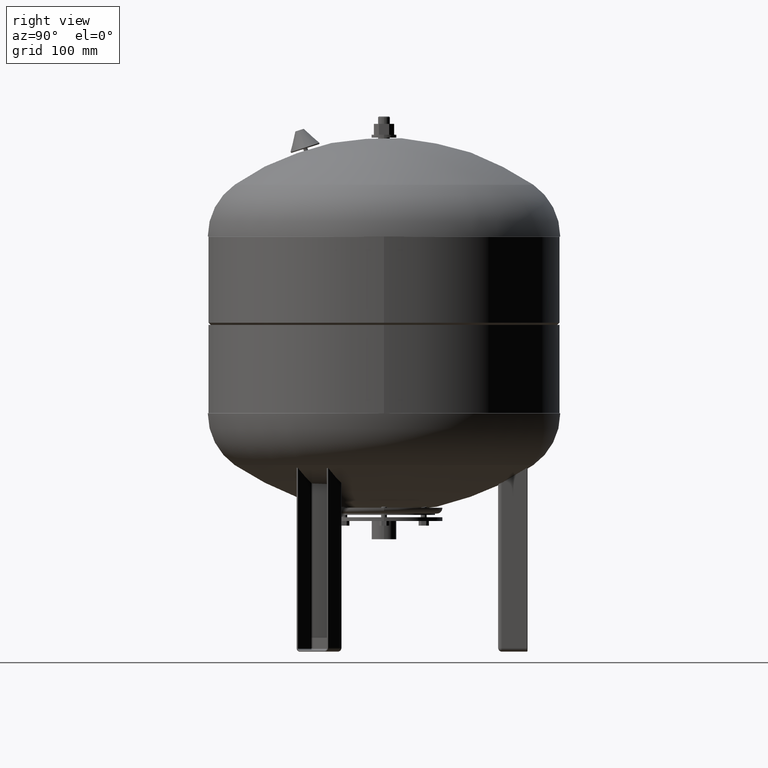
[diagram: clean part render]
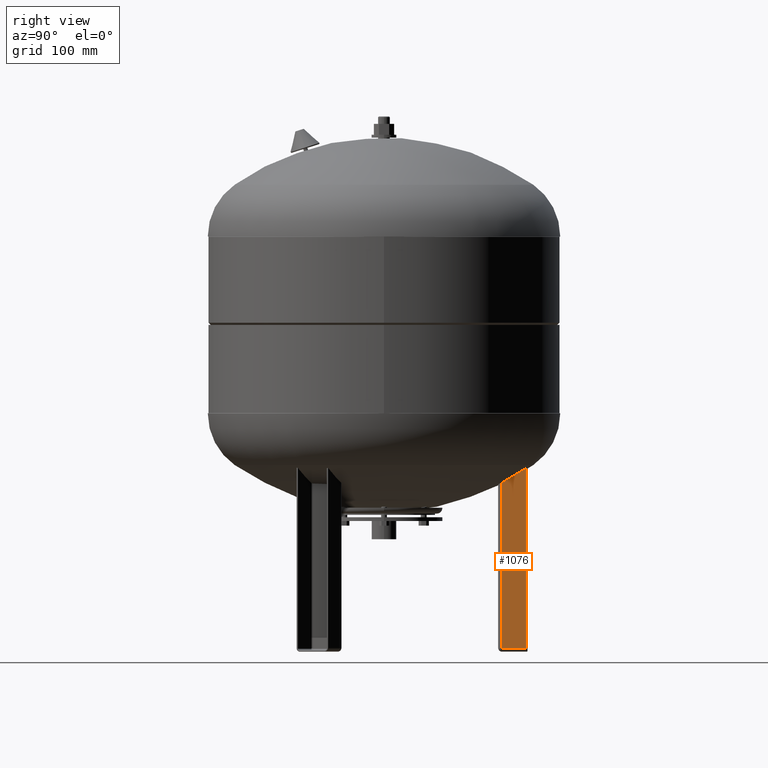
[diagram: same view with one face highlighted and labeled with its STEP entity id]
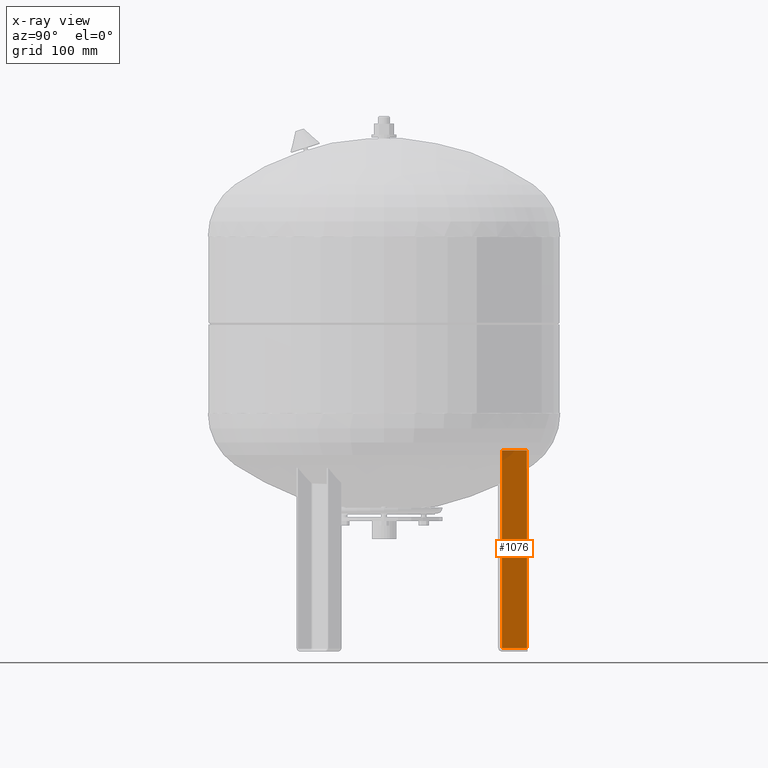
[diagram: x-ray of the same camera — body ghosted, the highlighted face saturated]
A machine part, right view. The second image highlights one B-rep face of the part: STEP entity #1076.
The next image is the same camera in x-ray: the body ghosted, the highlighted face saturated — about 2% of this face is hidden behind the body in this view.
In plain terms, the highlighted planar face has unit normal (1, 0, 0).
Its self-contained STEP definition (entity closure, byte-faithful):
#284=CARTESIAN_POINT('',(25.000000000000007,160.500000000000000,274.0));
#285=VERTEX_POINT('',#284);
#293=CARTESIAN_POINT('',(25.0,194.500000000000000,274.0));
#294=VERTEX_POINT('',#293);
#295=CARTESIAN_POINT('',(25.0,194.500000000000000,274.0));
#296=DIRECTION('',(0.0,-1.0,0.0));
#297=VECTOR('',#296,34.0);
#298=LINE('',#295,#297);
#299=EDGE_CURVE('',#294,#285,#298,.T.);
#604=CARTESIAN_POINT('',(25.0,194.500000000000000,4.999999999999996));
#605=VERTEX_POINT('',#604);
#606=CARTESIAN_POINT('',(25.0,194.500000000000000,4.999999999999996));
#607=DIRECTION('',(0.0,0.0,1.0));
#608=VECTOR('',#607,269.0);
#609=LINE('',#606,#608);
#610=EDGE_CURVE('',#605,#294,#609,.T.);
#951=CARTESIAN_POINT('',(25.000000000000004,160.500000000000000,4.999999999999996));
#952=VERTEX_POINT('',#951);
#953=CARTESIAN_POINT('',(25.0,194.500000000000000,4.999999999999996));
#954=DIRECTION('',(0.0,-1.0,0.0));
#955=VECTOR('',#954,34.0);
#956=LINE('',#953,#955);
#957=EDGE_CURVE('',#605,#952,#956,.T.);
#1054=CARTESIAN_POINT('',(25.000000000000004,160.500000000000000,4.999999999999996));
#1055=DIRECTION('',(0.0,0.0,1.0));
#1056=VECTOR('',#1055,269.0);
#1057=LINE('',#1054,#1056);
#1058=EDGE_CURVE('',#952,#285,#1057,.T.);
#1065=CARTESIAN_POINT('',(24.999999999999996,195.500000000000000,-4.592425E-015));
#1066=DIRECTION('',(1.0,0.0,0.0));
#1067=DIRECTION('',(0.0,1.0,0.0));
#1068=AXIS2_PLACEMENT_3D('',#1065,#1066,#1067);
#1069=PLANE('',#1068);
#1070=ORIENTED_EDGE('',*,*,#610,.T.);
#1071=ORIENTED_EDGE('',*,*,#299,.T.);
#1072=ORIENTED_EDGE('',*,*,#1058,.F.);
#1073=ORIENTED_EDGE('',*,*,#957,.F.);
#1074=EDGE_LOOP('',(#1070,#1071,#1072,#1073));
#1075=FACE_OUTER_BOUND('',#1074,.T.);
#1076=ADVANCED_FACE('',(#1075),#1069,.T.);